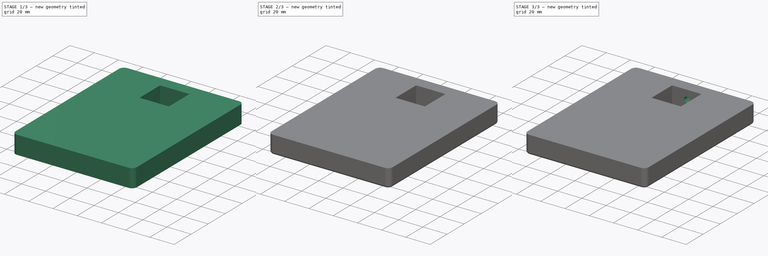
[diagram: build sequence overview — one tinted view per stage of 3, left to right]
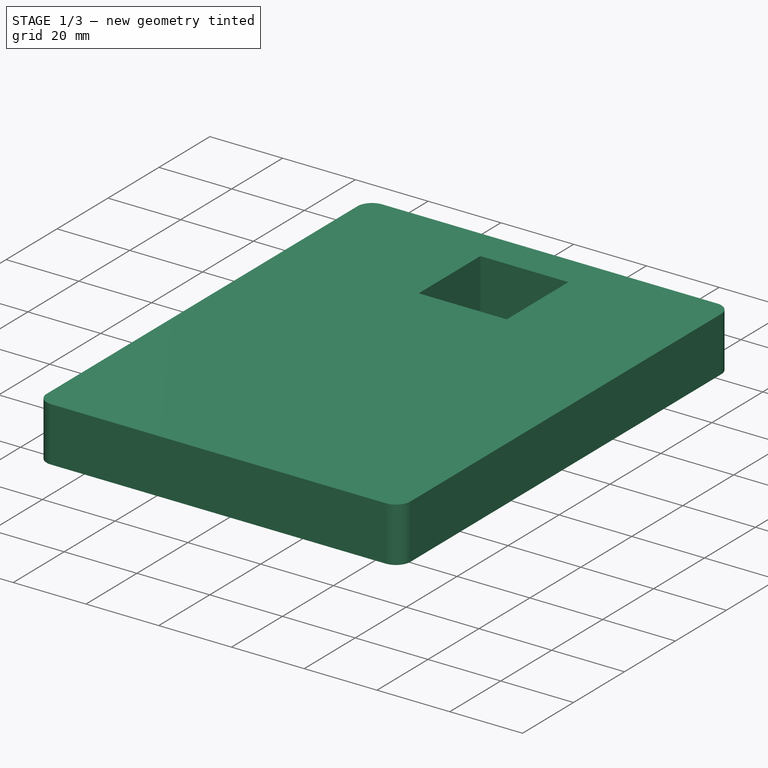
[diagram: stage 1 of 3 — iso view after this stage's code; geometry added in this stage tinted green]
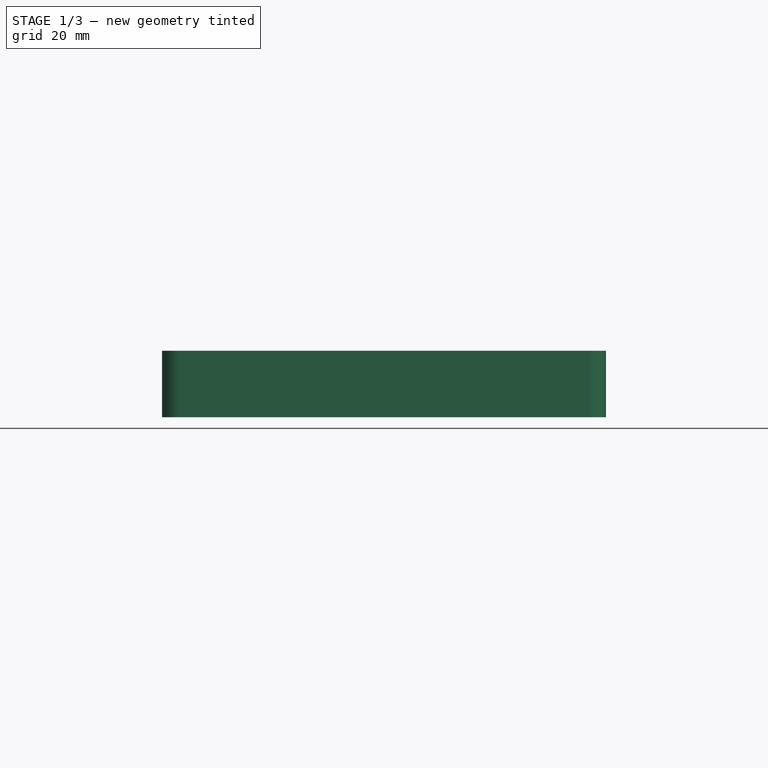
[diagram: stage 1 of 3 — front view after this stage's code; geometry added in this stage tinted green]
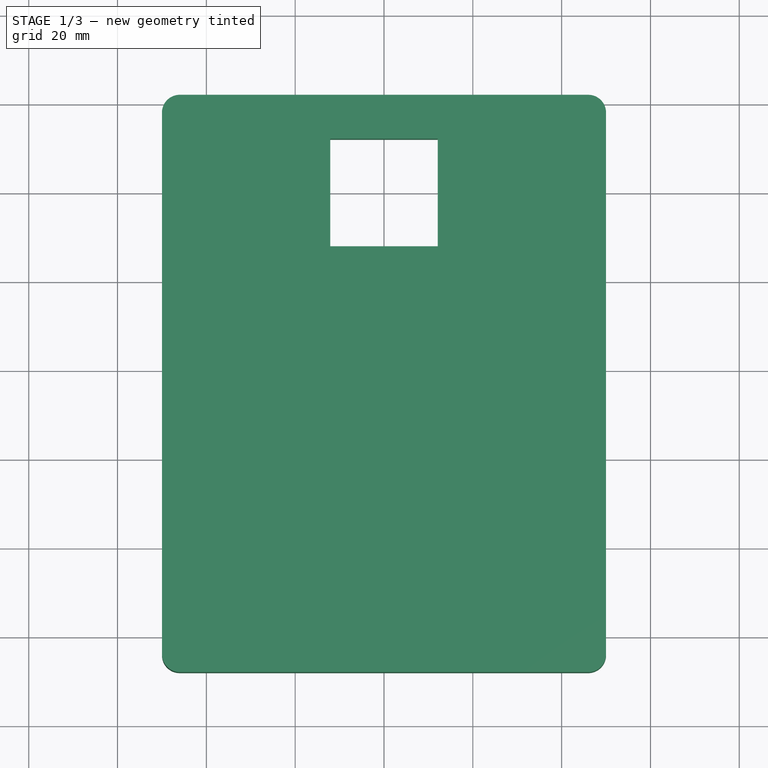
[diagram: stage 1 of 3 — top view after this stage's code; geometry added in this stage tinted green]
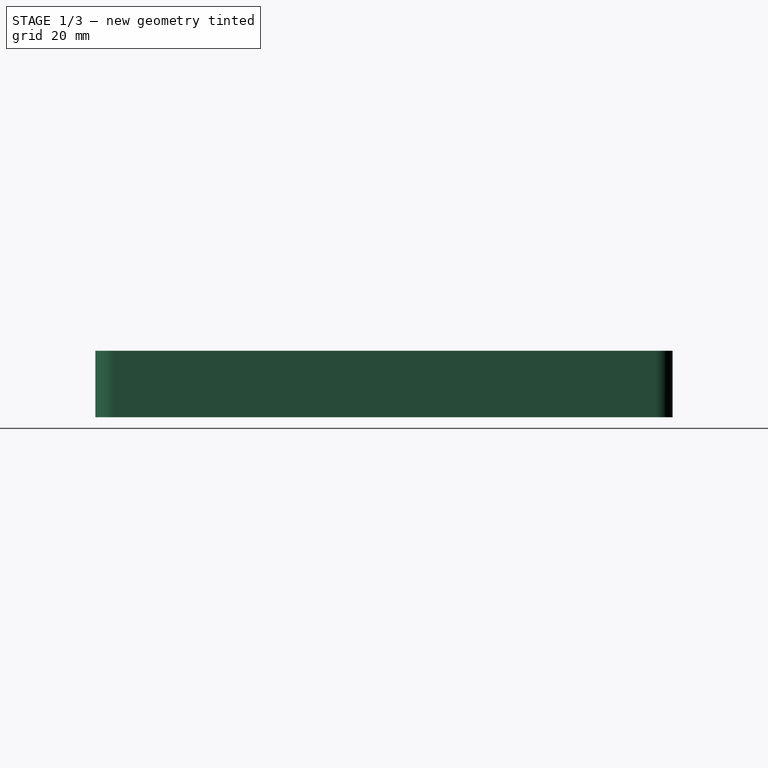
[diagram: stage 1 of 3 — right view after this stage's code; geometry added in this stage tinted green]
FCSTD DOCUMENT  (FreeCAD 0.20R29410 (Git))
Label: HeatSetInsertPress
License: All rights reserved
LicenseURL: http://en.wikipedia.org/wiki/All_rights_reserved
objects: Sketcher::SketchObject×4, PartDesign::Fillet×2, PartDesign::Pocket×2, PartDesign::Body×2, PartDesign::Pad×1, App::Part×1
note: 16 computed .brp shape members not serialized (recipe doc carries the construction recipe); baked Part::Feature solids carry a one-line shape summary decoded from their .brp

FEATURE [Sketcher::SketchObject] Sketch
  FullyConstrained = true
  MapMode = 5
  Support = -> [XY_Plane001]
  sketch-geometry (18):
    g0: LineSegment StartX=-50 StartY=22 StartZ=0 EndX=50 EndY=22 EndZ=0
    g1: LineSegment StartX=50 StartY=22 StartZ=0 EndX=50 EndY=-108 EndZ=0
    g2: LineSegment StartX=50 StartY=-108 StartZ=0 EndX=-50 EndY=-108 EndZ=0
    g3: LineSegment StartX=-50 StartY=-108 StartZ=0 EndX=-50 EndY=22 EndZ=0
    g4: LineSegment StartX=-10 StartY=10 StartZ=0 EndX=10 EndY=10 EndZ=0
    g5: LineSegment StartX=10 StartY=10 StartZ=0 EndX=10 EndY=-10 EndZ=0
    g6: LineSegment StartX=10 StartY=-10 StartZ=0 EndX=-10 EndY=-10 EndZ=0
    g7: LineSegment StartX=-10 StartY=-10 StartZ=0 EndX=-10 EndY=10 EndZ=0
    g8: GeomPoint X=0 Y=0 Z=0
    g9: LineSegment StartX=0 StartY=22 StartZ=0 EndX=0 EndY=-108 EndZ=0
    g10: LineSegment StartX=-12 StartY=-12 StartZ=0 EndX=-12 EndY=0 EndZ=0
    g11: LineSegment StartX=-12 StartY=0 StartZ=0 EndX=-12 EndY=12 EndZ=0
    g12: LineSegment StartX=-12 StartY=12 StartZ=0 EndX=0 EndY=12 EndZ=0
    g13: LineSegment StartX=0 StartY=12 StartZ=0 EndX=12 EndY=12 EndZ=0
    g14: LineSegment StartX=12 StartY=12 StartZ=0 EndX=12 EndY=0 EndZ=0
    g15: LineSegment StartX=12 StartY=0 StartZ=0 EndX=12 EndY=-12 EndZ=0
    g16: LineSegment StartX=12 StartY=-12 StartZ=0 EndX=0 EndY=-12 EndZ=0
    g17: LineSegment StartX=0 StartY=-12 StartZ=0 EndX=-12 EndY=-12 EndZ=0
  constraints (51):
    c: Coincident(g0,g1)
    c: Coincident(g1,g2)
    c: Coincident(g2,g3)
    c: Coincident(g3,g0)
    c: Horizontal(g0)
    c: Horizontal(g2)
    c: Vertical(g1)
    c: Vertical(g3)
    c: Coincident(g4,g5)
    c: Coincident(g5,g6)
    c: Coincident(g6,g7)
    c: Coincident(g7,g4)
    c: Horizontal(g4)
    c: Horizontal(g6)
    c: Vertical(g5)
    c: Vertical(g7)
    c: Coincident(g13,g14)
    c: Coincident(g15,g16)
    c: Coincident(g17,g10)
    c: Coincident(g11,g12)
    c: Equal(g7,g4)
    c: DistanceX(g4,g4) = 20
    c: DistanceX(g12,g13) = 24
    c: Symmetric(g6,g4,g8)
    c: Symmetric(g17,g13,g8)
    c: PointOnObject(g9,g2)
    c: Vertical(g9)
    c: PointOnObject(g8,g9)
    c: Symmetric(g0,g0,g9)
    c: DistanceY(g12,g0) = 10
    c: DistanceX(g0,g0) = 100
    c: DistanceY(g3,g3) = 130
    c: Coincident(g-1,g8)  '__##__'
    c: Coincident(g10,g11)
    c: Vertical(g10)
    c: Vertical(g11)
    c: Equal(g11,g10)
    c: Coincident(g12,g13)
    c: Horizontal(g12)
    c: Horizontal(g13)
    c: Coincident(g14,g15)
    c: Vertical(g14)
    c: Vertical(g15)
    c: Coincident(g16,g17)
    c: Horizontal(g16)
    c: Horizontal(g17)
    c: Equal(g10,g17)
    c: Equal(g17,g16)
    c: Equal(g16,g15)
    c: Equal(g14,g13)
    c: DistanceY(g10,g0) = 22  'BackOffset'
FEATURE [Sketcher::SketchObject] Sketch001
  ExternalGeometry = -> [Sketch]
  FullyConstrained = true
  MapMode = 5
  Support = -> [XY_Plane001]
  sketch-geometry (12):
    g0: LineSegment StartX=-50 StartY=22 StartZ=0 EndX=50 EndY=22 EndZ=0
    g1: LineSegment StartX=50 StartY=22 StartZ=0 EndX=50 EndY=-108 EndZ=0
    g2: LineSegment StartX=50 StartY=-108 StartZ=0 EndX=-50 EndY=-108 EndZ=0
    g3: LineSegment StartX=-50 StartY=-108 StartZ=0 EndX=-50 EndY=22 EndZ=0
    g4: LineSegment StartX=-12 StartY=12 StartZ=0 EndX=-12.1 EndY=12 EndZ=0
    g5: LineSegment StartX=12 StartY=12 StartZ=0 EndX=12 EndY=12.1 EndZ=0
    g6: LineSegment StartX=12 StartY=-12 StartZ=0 EndX=12.1 EndY=-12 EndZ=0
    g7: LineSegment StartX=-12 StartY=-12 StartZ=0 EndX=-12 EndY=-12.1 EndZ=0
    g8: LineSegment StartX=-12.1 StartY=12.1 StartZ=0 EndX=12.1 EndY=12.1 EndZ=0
    g9: LineSegment StartX=12.1 StartY=12.1 StartZ=0 EndX=12.1 EndY=-12.1 EndZ=0
    g10: LineSegment StartX=12.1 StartY=-12.1 StartZ=0 EndX=-12.1 EndY=-12.1 EndZ=0
    g11: LineSegment StartX=-12.1 StartY=-12.1 StartZ=0 EndX=-12.1 EndY=12.1 EndZ=0
  constraints (32):
    c: Coincident(g-3,g0)
    c: Coincident(g0,g-4)
    c: Coincident(g0,g1)
    c: Coincident(g1,g2)
    c: Coincident(g2,g-3)
    c: Coincident(g2,g3)
    c: Coincident(g3,g0)
    c: Coincident(g1,g-4)
    c: Coincident(g4,g-5)
    c: Horizontal(g4)
    c: Coincident(g5,g-6)
    c: Vertical(g5)
    c: Coincident(g6,g-7)
    c: Horizontal(g6)
    c: Coincident(g7,g-8)
    c: Vertical(g7)
    c: Equal(g4,g5)
    c: Equal(g5,g6)
    c: Equal(g6,g7)
    c: Coincident(g8,g9)
    c: Coincident(g9,g10)
    c: Coincident(g10,g11)
    c: Coincident(g11,g8)
    c: Horizontal(g8)
    c: Horizontal(g10)
    c: Vertical(g9)
    c: Vertical(g11)
    c: PointOnObject(g6,g9)
    c: PointOnObject(g7,g10)
    c: PointOnObject(g4,g11)
    c: PointOnObject(g5,g8)
    c: DistanceY(g4,g8) = 0.1
FEATURE [PartDesign::Pad] Pad
  Direction = (0,0,1)
  Length = 15
  Length2 = 10
  Profile = -> Sketch001
  ReferenceAxis = -> Sketch001 [N_Axis]
  Type = 0
FEATURE [Sketcher::SketchObject] Sketch002
  AttachmentOffset = pos=(0,7.5,-22) rot=(0,0,1;0rad)
  FullyConstrained = true
  MapMode = 5
  Placement = pos=(0,22,7.5) rot=(1,0,0;1.5708rad)
  Support = -> [XZ_Plane001]
  expr: .AttachmentOffset.Base.y = Pad.Length / 2
  expr: .AttachmentOffset.Base.z = -<<Sketch>>.Constraints.BackOffset
  expr: Constraints[1] = <<ScrewData>>#<<Screws>>.M4Radius
  sketch-geometry (1):
    g0: Circle CenterX=0 CenterY=0 CenterZ=0 NormalX=0 NormalY=0 NormalZ=1 AngleXU=0 Radius=2.2
  constraints (2):
    c: Coincident(g0,g-1)
    c: Radius(g0) = 2.2
FEATURE [Sketcher::SketchObject] Sketch003
  AttachmentOffset = pos=(0,7.5,-22) rot=(0,0,1;0rad)
  FullyConstrained = true
  MapMode = 5
  Placement = pos=(0,22,7.5) rot=(1,0,0;1.5708rad)
  Support = -> [XZ_Plane001]
  expr: .AttachmentOffset.Base.y = Pad.Length / 2
  expr: .AttachmentOffset.Base.z = -<<Sketch>>.Constraints.BackOffset
  expr: Constraints[1] = <<ScrewData>>#<<Screws>>.M4HeadRadius
  sketch-geometry (1):
    g0: Circle CenterX=0 CenterY=0 CenterZ=0 NormalX=0 NormalY=0 NormalZ=1 AngleXU=0 Radius=3.75
  constraints (2):
    c: Coincident(g0,g-1)
    c: Radius(g0) = 3.75
FEATURE [PartDesign::Fillet] Fillet
  Base = -> Pad [Edge1,Edge2,Edge5,Edge8]
  BaseFeature = -> Pad
  Radius = 4
  SupportTransform = false
  UseAllEdges = false
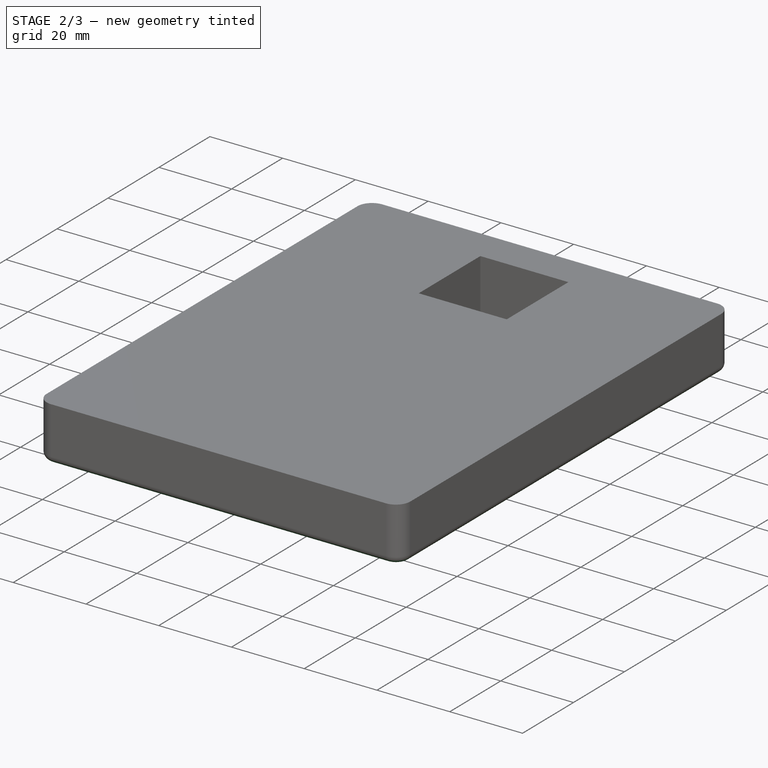
[diagram: stage 2 of 3 — iso view after this stage's code; geometry added in this stage tinted green]
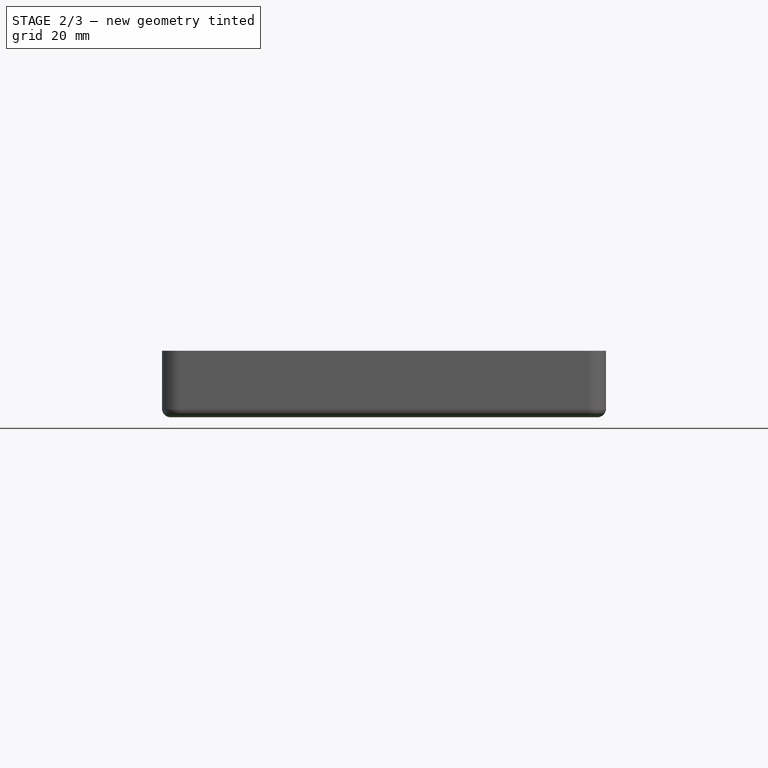
[diagram: stage 2 of 3 — front view after this stage's code; geometry added in this stage tinted green]
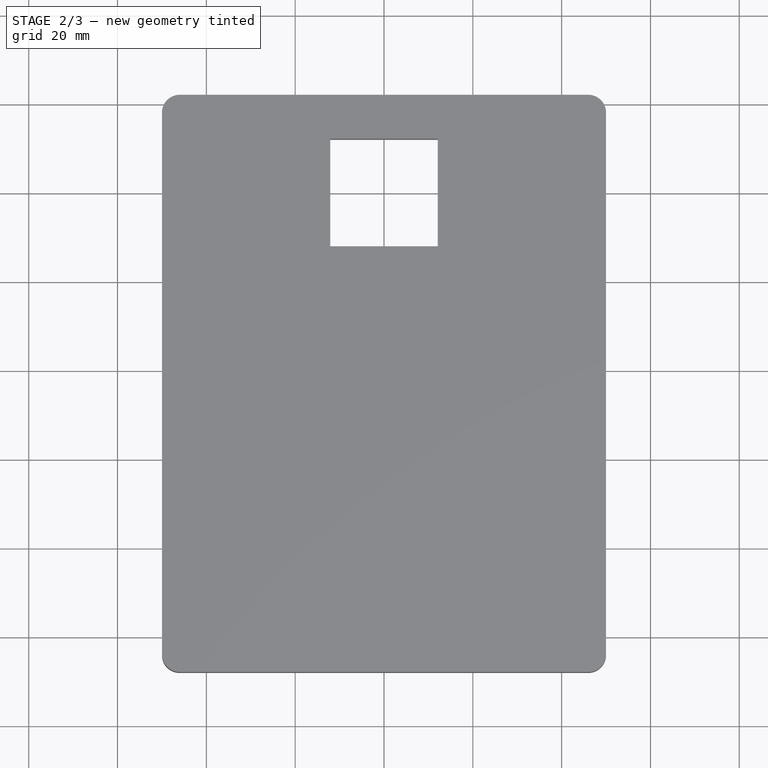
[diagram: stage 2 of 3 — top view after this stage's code; geometry added in this stage tinted green]
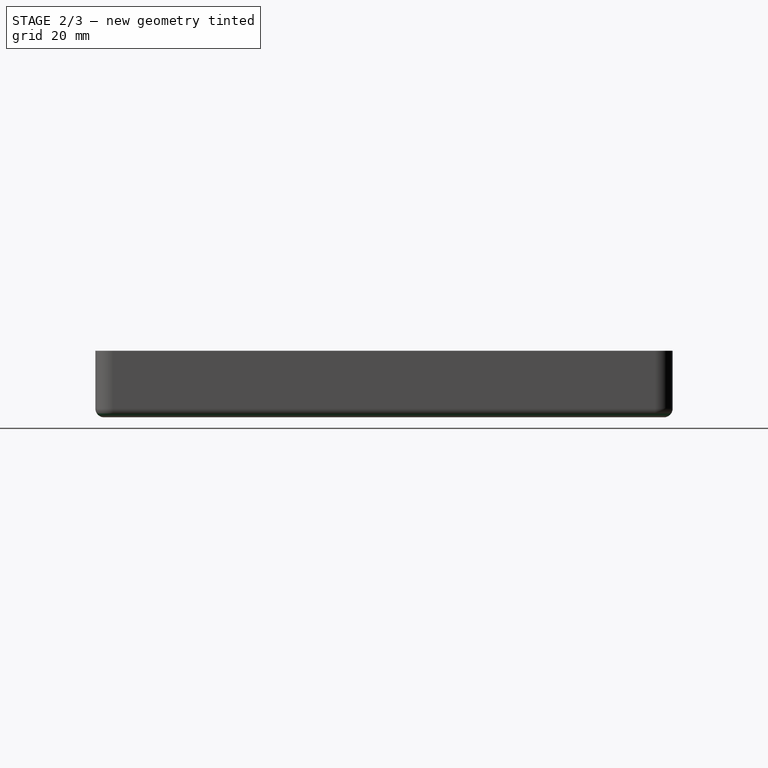
[diagram: stage 2 of 3 — right view after this stage's code; geometry added in this stage tinted green]
FEATURE [PartDesign::Fillet] Fillet001
  Base = -> Fillet [Edge1]
  BaseFeature = -> Fillet
  Radius = 2
  SupportTransform = false
  UseAllEdges = false
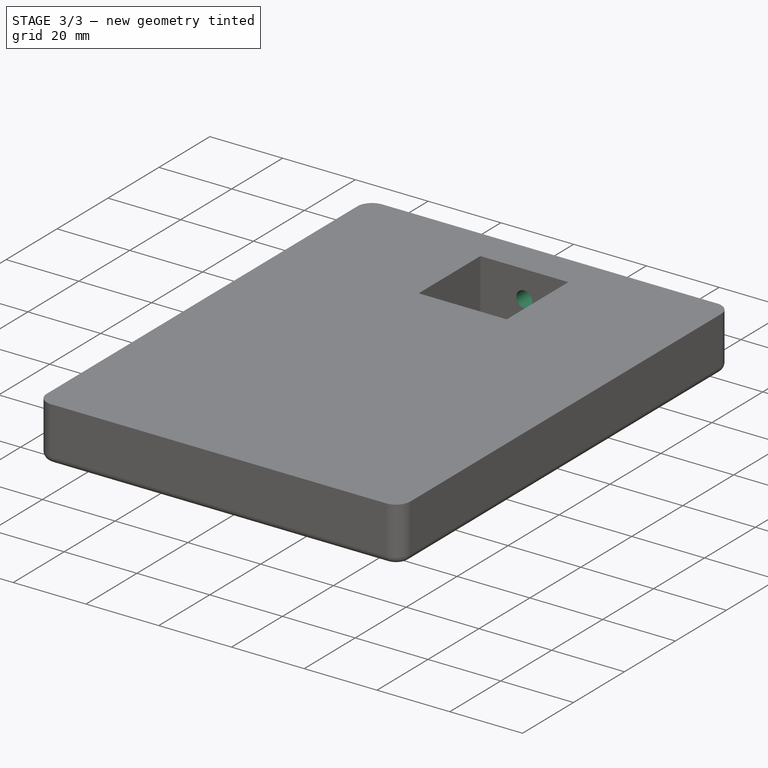
[diagram: stage 3 of 3 — iso view after this stage's code; geometry added in this stage tinted green]
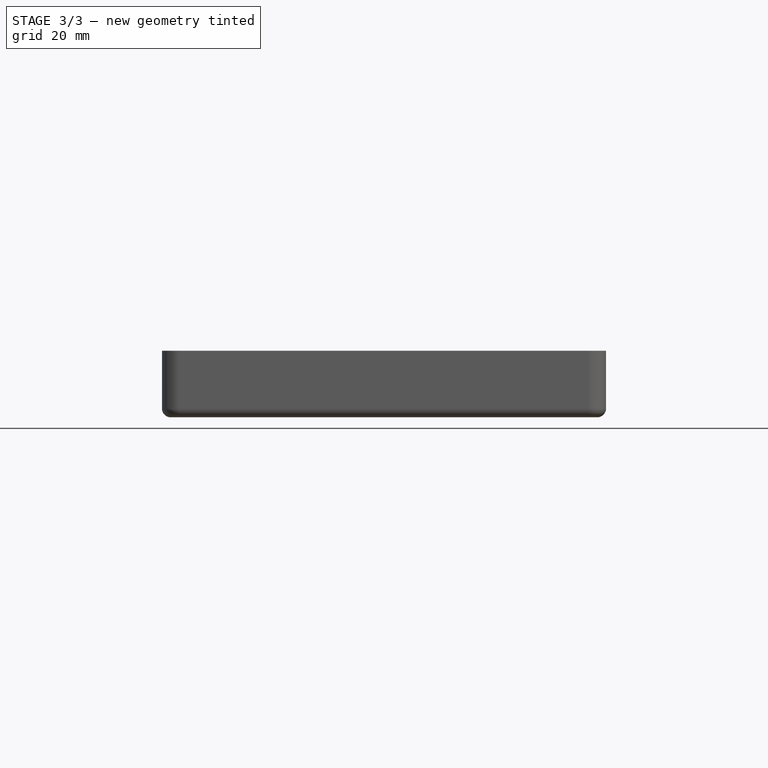
[diagram: stage 3 of 3 — front view after this stage's code; geometry added in this stage tinted green]
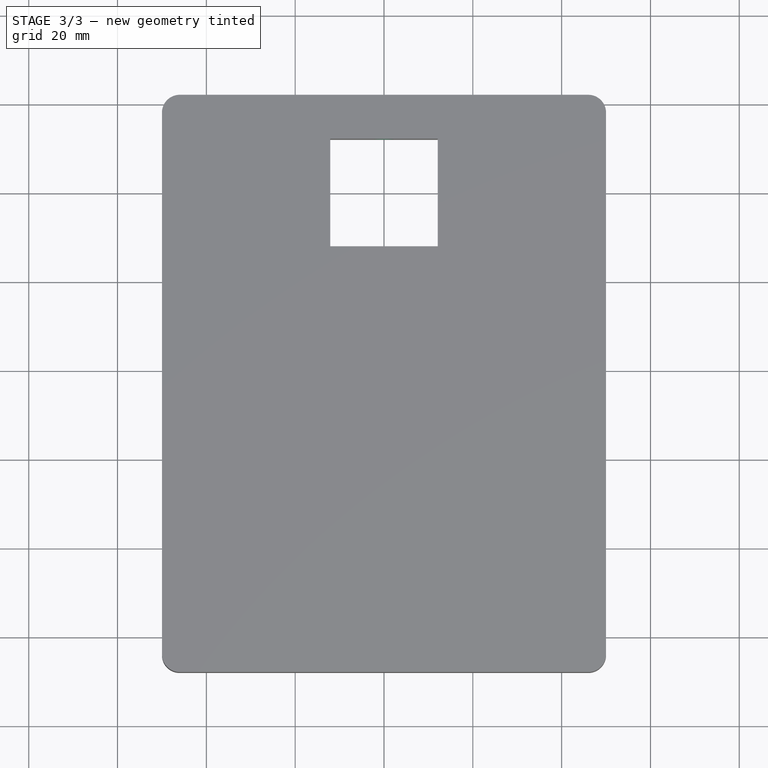
[diagram: stage 3 of 3 — top view after this stage's code; geometry added in this stage tinted green]
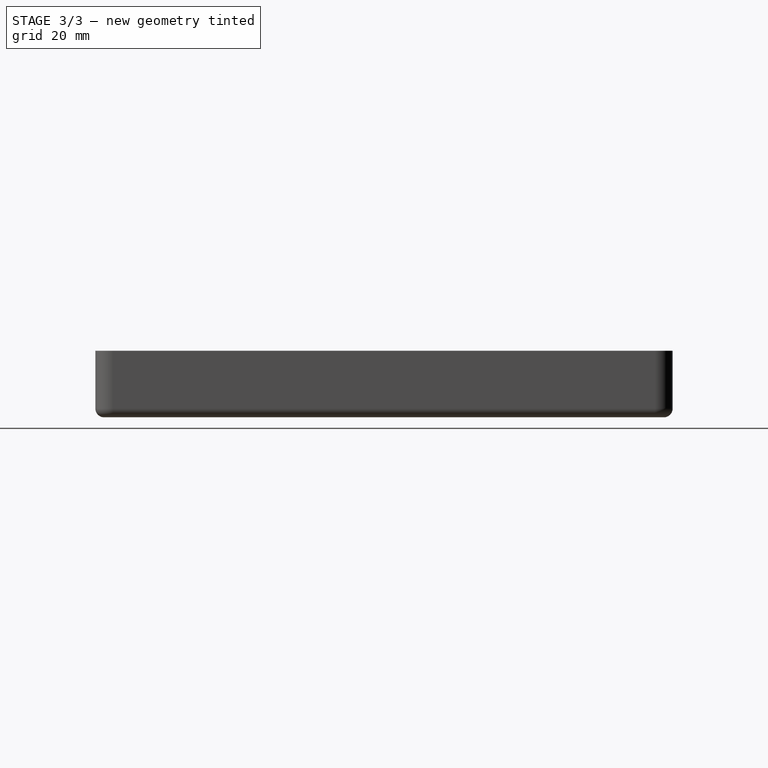
[diagram: stage 3 of 3 — right view after this stage's code; geometry added in this stage tinted green]
FEATURE [PartDesign::Pocket] Pocket
  BaseFeature = -> Fillet001
  Direction = (0,1,-2e-16)
  Length = 22
  Length2 = 5
  Profile = -> Sketch002
  ReferenceAxis = -> Sketch002 [N_Axis]
  Reversed = true
  Type = 0
  expr: Length = <<Sketch>>.Constraints.BackOffset
FEATURE [PartDesign::Pocket] Pocket001
  BaseFeature = -> Pocket
  Direction = (0,1,-2e-16)
  Length = 5
  Length2 = 5
  Profile = -> Sketch003
  ReferenceAxis = -> Sketch003 [N_Axis]
  Reversed = true
  Type = 0
FEATURE [PartDesign::Body] Body
  Group = -> [Sketch,Sketch001,Pad,Sketch002,Fillet,Fillet001,Pocket,Sketch003,Pocket001]
  Origin = -> Origin001
  Tip = -> Pocket001
FEATURE [PartDesign::Body] Body001
  Origin = -> Origin002
FEATURE [App::Part] Part
  Group = -> [Body,Body001]
  Origin = -> Origin
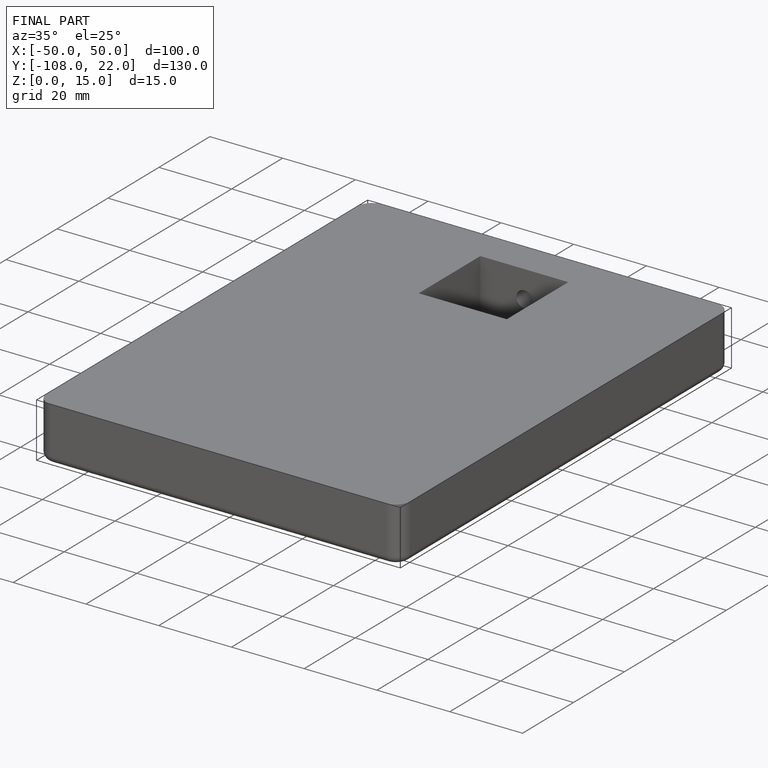
[diagram: finished part — iso view with bounding-box wireframe]
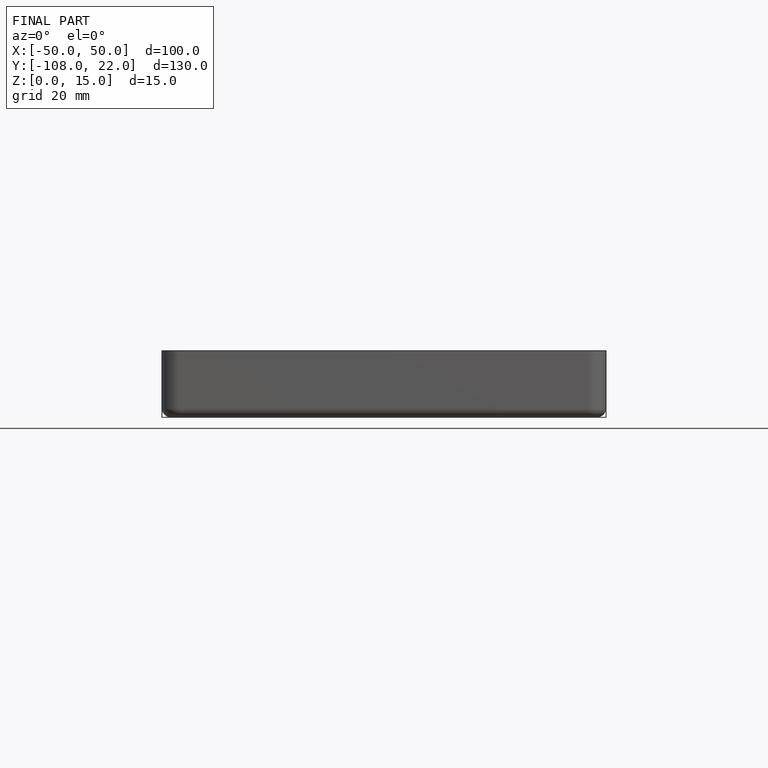
[diagram: finished part — front view with bounding-box wireframe]
